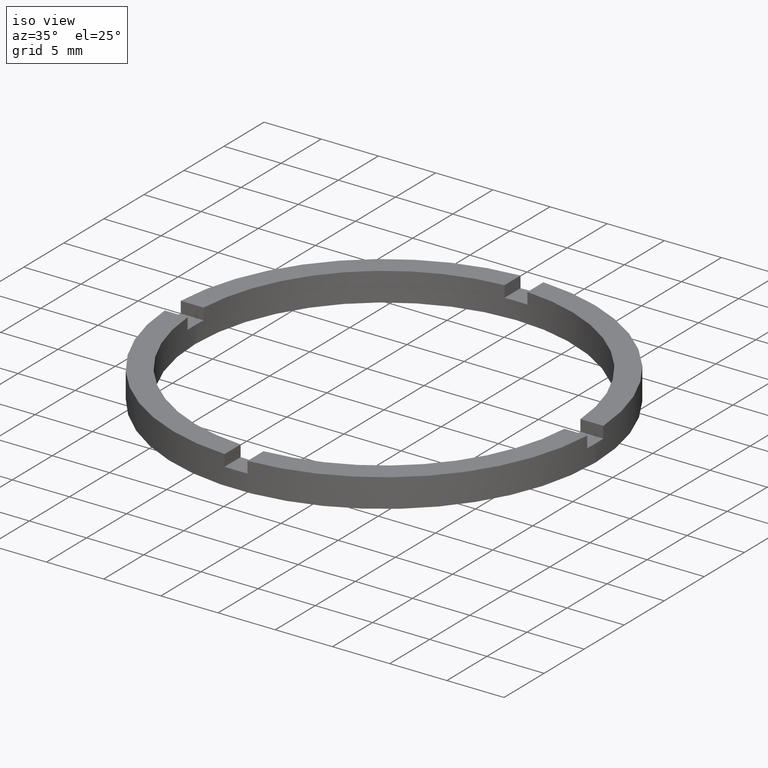
[diagram: clean part render]
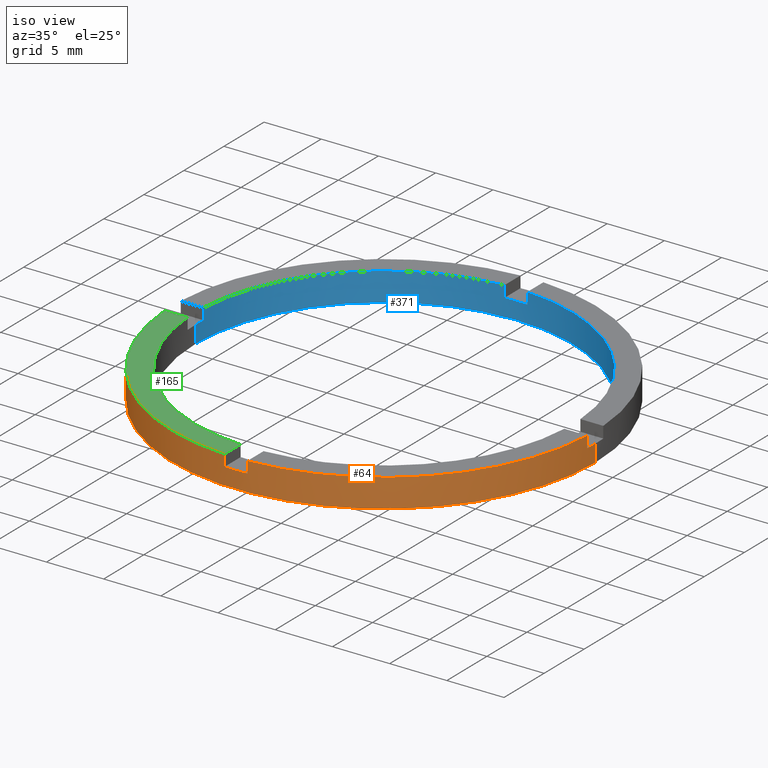
[diagram: same view with three faces highlighted in distinct colors, each labeled with its STEP entity id]
A machine part, iso view with three faces highlighted in distinct colors.
Their STEP definitions:

[orange] entity #64 — the highlighted cylindrical surface (partial cylindrical patch) has radius 18.5 mm, axis along (-0, -0, -1).
#4 = CARTESIAN_POINT ( 'NONE',  ( 0.000000000000000000, 0.000000000000000000, 1.500000000000000000 ) ) ;
#10 = DIRECTION ( 'NONE',  ( 1.000000000000000000, 0.000000000000000000, 0.000000000000000000 ) ) ;
#12 = CARTESIAN_POINT ( 'NONE',  ( -18.47295320191116375, -1.000000000000025313, 1.500000000000000000 ) ) ;
#18 = CARTESIAN_POINT ( 'NONE',  ( 0.000000000000000000, 0.000000000000000000, 2.500000000000000000 ) ) ;
#20 = EDGE_CURVE ( 'NONE', #684, #507, #678, .T. ) ;
#22 = CARTESIAN_POINT ( 'NONE',  ( 18.47295320191115309, -1.000000000000157208, 1.500000000000000000 ) ) ;
#38 = EDGE_CURVE ( 'NONE', #684, #618, #688, .T. ) ;
#53 = CARTESIAN_POINT ( 'NONE',  ( -18.50000000000000000, 0.000000000000000000, 1.500000000000000000 ) ) ;
#54 = ORIENTED_EDGE ( 'NONE', *, *, #296, .F. ) ;
#58 = ORIENTED_EDGE ( 'NONE', *, *, #427, .F. ) ;
#64 = ADVANCED_FACE ( 'NONE', ( #169 ), #456, .T. ) ;
#65 = VERTEX_POINT ( 'NONE', #12 ) ;
#79 = DIRECTION ( 'NONE',  ( 1.000000000000000000, 0.000000000000000000, 0.000000000000000000 ) ) ;
#105 = VERTEX_POINT ( 'NONE', #247 ) ;
#107 = EDGE_CURVE ( 'NONE', #350, #604, #204, .T. ) ;
#112 = LINE ( 'NONE', #501, #690 ) ;
#113 = ORIENTED_EDGE ( 'NONE', *, *, #38, .T. ) ;
#120 = LINE ( 'NONE', #135, #671 ) ;
#121 = CARTESIAN_POINT ( 'NONE',  ( 0.000000000000000000, 0.000000000000000000, 1.500000000000000000 ) ) ;
#135 = CARTESIAN_POINT ( 'NONE',  ( 18.50000000000000000, 2.265596578422603396E-15, 2.500000000000000000 ) ) ;
#142 = CIRCLE ( 'NONE', #431, 18.50000000000000000 ) ;
#143 = ORIENTED_EDGE ( 'NONE', *, *, #107, .T. ) ;
#144 = VECTOR ( 'NONE', #573, 1000.000000000000000 ) ;
#147 = CIRCLE ( 'NONE', #151, 18.50000000000000000 ) ;
#151 = AXIS2_PLACEMENT_3D ( 'NONE', #245, #330, #691 ) ;
#155 = CARTESIAN_POINT ( 'NONE',  ( -18.47295320191116375, -1.000000000000025313, 2.500000000000000000 ) ) ;
#167 = VERTEX_POINT ( 'NONE', #285 ) ;
#169 = FACE_OUTER_BOUND ( 'NONE', #340, .T. ) ;
#172 = ORIENTED_EDGE ( 'NONE', *, *, #455, .T. ) ;
#199 = AXIS2_PLACEMENT_3D ( 'NONE', #243, #325, #430 ) ;
#204 = CIRCLE ( 'NONE', #513, 18.50000000000000000 ) ;
#232 = AXIS2_PLACEMENT_3D ( 'NONE', #4, #561, #737 ) ;
#243 = CARTESIAN_POINT ( 'NONE',  ( 0.000000000000000000, 0.000000000000000000, 2.500000000000000000 ) ) ;
#245 = CARTESIAN_POINT ( 'NONE',  ( 0.000000000000000000, 0.000000000000000000, 1.500000000000000000 ) ) ;
#247 = CARTESIAN_POINT ( 'NONE',  ( 0.9999999999998391287, -18.47295320191117085, 2.500000000000000000 ) ) ;
#256 = DIRECTION ( 'NONE',  ( -0.000000000000000000, -0.000000000000000000, -1.000000000000000000 ) ) ;
#258 = EDGE_CURVE ( 'NONE', #436, #167, #652, .T. ) ;
#282 = CARTESIAN_POINT ( 'NONE',  ( -1.000000000000160982, -18.47295320191115309, 2.500000000000000000 ) ) ;
#285 = CARTESIAN_POINT ( 'NONE',  ( 18.50000000000000000, 2.265596578422603396E-15, 1.500000000000000000 ) ) ;
#290 = CARTESIAN_POINT ( 'NONE',  ( -1.000000000000160982, -18.47295320191115309, 2.500000000000000000 ) ) ;
#291 = AXIS2_PLACEMENT_3D ( 'NONE', #121, #360, #10 ) ;
#293 = CARTESIAN_POINT ( 'NONE',  ( 0.9999999999998391287, -18.47295320191117085, 2.500000000000000000 ) ) ;
#296 = EDGE_CURVE ( 'NONE', #105, #709, #358, .T. ) ;
#297 = CARTESIAN_POINT ( 'NONE',  ( 18.47295320191115309, -1.000000000000157208, 2.500000000000000000 ) ) ;
#299 = EDGE_CURVE ( 'NONE', #311, #350, #403, .T. ) ;
#311 = VERTEX_POINT ( 'NONE', #53 ) ;
#313 = ORIENTED_EDGE ( 'NONE', *, *, #425, .F. ) ;
#314 = ORIENTED_EDGE ( 'NONE', *, *, #445, .T. ) ;
#321 = DIRECTION ( 'NONE',  ( -0.000000000000000000, -0.000000000000000000, -1.000000000000000000 ) ) ;
#325 = DIRECTION ( 'NONE',  ( -0.000000000000000000, -0.000000000000000000, -1.000000000000000000 ) ) ;
#330 = DIRECTION ( 'NONE',  ( 0.000000000000000000, 0.000000000000000000, 1.000000000000000000 ) ) ;
#340 = EDGE_LOOP ( 'NONE', ( #313, #584, #461, #54, #172, #579, #113, #676, #314, #58, #580, #143 ) ) ;
#348 = VERTEX_POINT ( 'NONE', #155 ) ;
#350 = VERTEX_POINT ( 'NONE', #520 ) ;
#353 = DIRECTION ( 'NONE',  ( 0.000000000000000000, 0.000000000000000000, 1.000000000000000000 ) ) ;
#355 = EDGE_CURVE ( 'NONE', #436, #709, #369, .T. ) ;
#358 = CIRCLE ( 'NONE', #548, 18.50000000000000000 ) ;
#360 = DIRECTION ( 'NONE',  ( 0.000000000000000000, 0.000000000000000000, 1.000000000000000000 ) ) ;
#369 = LINE ( 'NONE', #297, #651 ) ;
#376 = CARTESIAN_POINT ( 'NONE',  ( 0.9999999999998391287, -18.47295320191117085, 1.500000000000000000 ) ) ;
#384 = DIRECTION ( 'NONE',  ( 0.000000000000000000, 0.000000000000000000, 1.000000000000000000 ) ) ;
#393 = VECTOR ( 'NONE', #465, 1000.000000000000000 ) ;
#403 = LINE ( 'NONE', #534, #144 ) ;
#425 = EDGE_CURVE ( 'NONE', #167, #604, #120, .T. ) ;
#427 = EDGE_CURVE ( 'NONE', #311, #65, #147, .T. ) ;
#428 = VECTOR ( 'NONE', #504, 1000.000000000000000 ) ;
#430 = DIRECTION ( 'NONE',  ( -1.000000000000000000, 0.000000000000000000, 0.000000000000000000 ) ) ;
#431 = AXIS2_PLACEMENT_3D ( 'NONE', #467, #516, #607 ) ;
#436 = VERTEX_POINT ( 'NONE', #22 ) ;
#442 = CARTESIAN_POINT ( 'NONE',  ( 18.50000000000000000, 2.265596578422603396E-15, 0.000000000000000000 ) ) ;
#445 = EDGE_CURVE ( 'NONE', #348, #65, #112, .T. ) ;
#450 = CARTESIAN_POINT ( 'NONE',  ( -1.000000000000160982, -18.47295320191115309, 1.500000000000000000 ) ) ;
#455 = EDGE_CURVE ( 'NONE', #105, #507, #654, .T. ) ;
#456 = CYLINDRICAL_SURFACE ( 'NONE', #199, 18.50000000000000000 ) ;
#461 = ORIENTED_EDGE ( 'NONE', *, *, #355, .T. ) ;
#465 = DIRECTION ( 'NONE',  ( -0.000000000000000000, -0.000000000000000000, -1.000000000000000000 ) ) ;
#467 = CARTESIAN_POINT ( 'NONE',  ( 0.000000000000000000, 0.000000000000000000, 2.500000000000000000 ) ) ;
#501 = CARTESIAN_POINT ( 'NONE',  ( -18.47295320191116375, -1.000000000000025313, 2.500000000000000000 ) ) ;
#504 = DIRECTION ( 'NONE',  ( 0.000000000000000000, 0.000000000000000000, 1.000000000000000000 ) ) ;
#507 = VERTEX_POINT ( 'NONE', #376 ) ;
#513 = AXIS2_PLACEMENT_3D ( 'NONE', #567, #637, #79 ) ;
#516 = DIRECTION ( 'NONE',  ( 0.000000000000000000, 0.000000000000000000, 1.000000000000000000 ) ) ;
#520 = CARTESIAN_POINT ( 'NONE',  ( -18.50000000000000000, 0.000000000000000000, 0.000000000000000000 ) ) ;
#534 = CARTESIAN_POINT ( 'NONE',  ( -18.50000000000000000, 0.000000000000000000, 2.500000000000000000 ) ) ;
#548 = AXIS2_PLACEMENT_3D ( 'NONE', #18, #353, #596 ) ;
#561 = DIRECTION ( 'NONE',  ( -0.000000000000000000, 0.000000000000000000, 1.000000000000000000 ) ) ;
#563 = EDGE_CURVE ( 'NONE', #348, #618, #142, .T. ) ;
#567 = CARTESIAN_POINT ( 'NONE',  ( 0.000000000000000000, 0.000000000000000000, 0.000000000000000000 ) ) ;
#573 = DIRECTION ( 'NONE',  ( -0.000000000000000000, -0.000000000000000000, -1.000000000000000000 ) ) ;
#579 = ORIENTED_EDGE ( 'NONE', *, *, #20, .F. ) ;
#580 = ORIENTED_EDGE ( 'NONE', *, *, #299, .T. ) ;
#584 = ORIENTED_EDGE ( 'NONE', *, *, #258, .F. ) ;
#596 = DIRECTION ( 'NONE',  ( 1.000000000000000000, 0.000000000000000000, 0.000000000000000000 ) ) ;
#604 = VERTEX_POINT ( 'NONE', #442 ) ;
#607 = DIRECTION ( 'NONE',  ( 1.000000000000000000, 0.000000000000000000, 0.000000000000000000 ) ) ;
#618 = VERTEX_POINT ( 'NONE', #290 ) ;
#637 = DIRECTION ( 'NONE',  ( 0.000000000000000000, 0.000000000000000000, 1.000000000000000000 ) ) ;
#651 = VECTOR ( 'NONE', #384, 1000.000000000000000 ) ;
#652 = CIRCLE ( 'NONE', #291, 18.50000000000000000 ) ;
#654 = LINE ( 'NONE', #293, #393 ) ;
#671 = VECTOR ( 'NONE', #321, 1000.000000000000000 ) ;
#676 = ORIENTED_EDGE ( 'NONE', *, *, #563, .F. ) ;
#678 = CIRCLE ( 'NONE', #232, 18.50000000000000000 ) ;
#684 = VERTEX_POINT ( 'NONE', #450 ) ;
#688 = LINE ( 'NONE', #282, #428 ) ;
#690 = VECTOR ( 'NONE', #256, 1000.000000000000000 ) ;
#691 = DIRECTION ( 'NONE',  ( 1.000000000000000000, 0.000000000000000000, 0.000000000000000000 ) ) ;
#709 = VERTEX_POINT ( 'NONE', #742 ) ;
#737 = DIRECTION ( 'NONE',  ( 1.000000000000000000, 0.000000000000000000, 0.000000000000000000 ) ) ;
#742 = CARTESIAN_POINT ( 'NONE',  ( 18.47295320191115309, -1.000000000000157208, 2.500000000000000000 ) ) ;

[blue] entity #371 — the highlighted cylindrical surface (partial cylindrical patch) has radius 16.5 mm, axis along (-0, -0, -1).
#1 = DIRECTION ( 'NONE',  ( 0.000000000000000000, 0.000000000000000000, 1.000000000000000000 ) ) ;
#7 = DIRECTION ( 'NONE',  ( -0.000000000000000000, -0.000000000000000000, -1.000000000000000000 ) ) ;
#15 = DIRECTION ( 'NONE',  ( 1.000000000000000000, 0.000000000000000000, 0.000000000000000000 ) ) ;
#17 = EDGE_CURVE ( 'NONE', #673, #136, #413, .T. ) ;
#30 = DIRECTION ( 'NONE',  ( -0.000000000000000000, -0.000000000000000000, -1.000000000000000000 ) ) ;
#43 = DIRECTION ( 'NONE',  ( 0.000000000000000000, 0.000000000000000000, 1.000000000000000000 ) ) ;
#48 = DIRECTION ( 'NONE',  ( 0.000000000000000000, -0.000000000000000000, 1.000000000000000000 ) ) ;
#49 = DIRECTION ( 'NONE',  ( 0.000000000000000000, 0.000000000000000000, 1.000000000000000000 ) ) ;
#66 = EDGE_CURVE ( 'NONE', #616, #595, #723, .T. ) ;
#67 = ORIENTED_EDGE ( 'NONE', *, *, #543, .F. ) ;
#78 = AXIS2_PLACEMENT_3D ( 'NONE', #277, #398, #490 ) ;
#80 = ORIENTED_EDGE ( 'NONE', *, *, #254, .T. ) ;
#87 = ORIENTED_EDGE ( 'NONE', *, *, #244, .T. ) ;
#91 = VERTEX_POINT ( 'NONE', #503 ) ;
#94 = ORIENTED_EDGE ( 'NONE', *, *, #97, .F. ) ;
#97 = EDGE_CURVE ( 'NONE', #100, #136, #732, .T. ) ;
#100 = VERTEX_POINT ( 'NONE', #236 ) ;
#108 = CARTESIAN_POINT ( 'NONE',  ( 0.000000000000000000, 0.000000000000000000, 1.500000000000000000 ) ) ;
#117 = VERTEX_POINT ( 'NONE', #406 ) ;
#126 = VECTOR ( 'NONE', #30, 1000.000000000000000 ) ;
#127 = LINE ( 'NONE', #550, #126 ) ;
#129 = LINE ( 'NONE', #612, #687 ) ;
#130 = VECTOR ( 'NONE', #257, 1000.000000000000000 ) ;
#132 = CIRCLE ( 'NONE', #533, 16.50000000000000000 ) ;
#136 = VERTEX_POINT ( 'NONE', #306 ) ;
#174 = EDGE_CURVE ( 'NONE', #117, #609, #721, .T. ) ;
#190 = ORIENTED_EDGE ( 'NONE', *, *, #331, .T. ) ;
#197 = ORIENTED_EDGE ( 'NONE', *, *, #728, .F. ) ;
#201 = CARTESIAN_POINT ( 'NONE',  ( 0.000000000000000000, 0.000000000000000000, 2.500000000000000000 ) ) ;
#214 = CARTESIAN_POINT ( 'NONE',  ( 0.9999999999999733546, 16.46966909200060414, 2.500000000000000000 ) ) ;
#222 = CARTESIAN_POINT ( 'NONE',  ( -1.000000000000026645, 16.46966909200060059, 2.500000000000000000 ) ) ;
#236 = CARTESIAN_POINT ( 'NONE',  ( 16.46966909200061480, 0.9999999999998427924, 2.500000000000000000 ) ) ;
#244 = EDGE_CURVE ( 'NONE', #334, #91, #627, .T. ) ;
#252 = CARTESIAN_POINT ( 'NONE',  ( -1.000000000000026645, 16.46966909200060059, 2.500000000000000000 ) ) ;
#254 = EDGE_CURVE ( 'NONE', #117, #320, #396, .T. ) ;
#257 = DIRECTION ( 'NONE',  ( -0.000000000000000000, -0.000000000000000000, -1.000000000000000000 ) ) ;
#260 = CARTESIAN_POINT ( 'NONE',  ( 16.50000000000000000, 2.020667218593133100E-15, 2.500000000000000000 ) ) ;
#261 = CARTESIAN_POINT ( 'NONE',  ( 16.50000000000000000, 2.020667218593133100E-15, 0.000000000000000000 ) ) ;
#267 = EDGE_CURVE ( 'NONE', #100, #609, #132, .T. ) ;
#268 = DIRECTION ( 'NONE',  ( -0.000000000000000000, -0.000000000000000000, -1.000000000000000000 ) ) ;
#277 = CARTESIAN_POINT ( 'NONE',  ( 0.000000000000000000, 0.000000000000000000, 1.500000000000000000 ) ) ;
#302 = CARTESIAN_POINT ( 'NONE',  ( -16.46966909200060414, 0.9999999999999751310, 1.500000000000000000 ) ) ;
#306 = CARTESIAN_POINT ( 'NONE',  ( 16.46966909200061480, 0.9999999999998427924, 1.500000000000000000 ) ) ;
#310 = ORIENTED_EDGE ( 'NONE', *, *, #17, .T. ) ;
#316 = VERTEX_POINT ( 'NONE', #261 ) ;
#320 = VERTEX_POINT ( 'NONE', #615 ) ;
#323 = ORIENTED_EDGE ( 'NONE', *, *, #562, .F. ) ;
#329 = ORIENTED_EDGE ( 'NONE', *, *, #66, .T. ) ;
#331 = EDGE_CURVE ( 'NONE', #91, #421, #127, .T. ) ;
#334 = VERTEX_POINT ( 'NONE', #302 ) ;
#345 = ORIENTED_EDGE ( 'NONE', *, *, #540, .F. ) ;
#354 = EDGE_LOOP ( 'NONE', ( #345, #310, #94, #583, #711, #80, #323, #329, #67, #87, #190, #197 ) ) ;
#370 = DIRECTION ( 'NONE',  ( -1.000000000000000000, 0.000000000000000000, 0.000000000000000000 ) ) ;
#371 = ADVANCED_FACE ( 'NONE', ( #392 ), #669, .F. ) ;
#382 = VECTOR ( 'NONE', #783, 1000.000000000000000 ) ;
#392 = FACE_OUTER_BOUND ( 'NONE', #354, .T. ) ;
#396 = CIRCLE ( 'NONE', #747, 16.50000000000000000 ) ;
#398 = DIRECTION ( 'NONE',  ( 0.000000000000000000, 0.000000000000000000, 1.000000000000000000 ) ) ;
#406 = CARTESIAN_POINT ( 'NONE',  ( 0.9999999999999733546, 16.46966909200060414, 1.500000000000000000 ) ) ;
#413 = CIRCLE ( 'NONE', #78, 16.50000000000000000 ) ;
#417 = CARTESIAN_POINT ( 'NONE',  ( 0.9999999999999733546, 16.46966909200060414, 2.500000000000000000 ) ) ;
#421 = VERTEX_POINT ( 'NONE', #512 ) ;
#438 = DIRECTION ( 'NONE',  ( 0.000000000000000000, 0.000000000000000000, 1.000000000000000000 ) ) ;
#449 = CARTESIAN_POINT ( 'NONE',  ( 0.000000000000000000, 0.000000000000000000, 1.500000000000000000 ) ) ;
#454 = AXIS2_PLACEMENT_3D ( 'NONE', #449, #438, #506 ) ;
#463 = VECTOR ( 'NONE', #1, 1000.000000000000000 ) ;
#481 = CARTESIAN_POINT ( 'NONE',  ( 0.000000000000000000, 0.000000000000000000, 2.500000000000000000 ) ) ;
#490 = DIRECTION ( 'NONE',  ( 1.000000000000000000, 0.000000000000000000, 0.000000000000000000 ) ) ;
#495 = CARTESIAN_POINT ( 'NONE',  ( 0.000000000000000000, 0.000000000000000000, 0.000000000000000000 ) ) ;
#503 = CARTESIAN_POINT ( 'NONE',  ( -16.50000000000000000, 0.000000000000000000, 1.500000000000000000 ) ) ;
#506 = DIRECTION ( 'NONE',  ( 1.000000000000000000, 0.000000000000000000, 0.000000000000000000 ) ) ;
#511 = CARTESIAN_POINT ( 'NONE',  ( 0.000000000000000000, 0.000000000000000000, 2.500000000000000000 ) ) ;
#512 = CARTESIAN_POINT ( 'NONE',  ( -16.50000000000000000, 0.000000000000000000, 0.000000000000000000 ) ) ;
#525 = DIRECTION ( 'NONE',  ( 1.000000000000000000, 0.000000000000000000, 0.000000000000000000 ) ) ;
#527 = DIRECTION ( 'NONE',  ( 0.000000000000000000, 0.000000000000000000, 1.000000000000000000 ) ) ;
#533 = AXIS2_PLACEMENT_3D ( 'NONE', #511, #49, #590 ) ;
#540 = EDGE_CURVE ( 'NONE', #673, #316, #680, .T. ) ;
#543 = EDGE_CURVE ( 'NONE', #334, #595, #129, .T. ) ;
#550 = CARTESIAN_POINT ( 'NONE',  ( -16.50000000000000000, 0.000000000000000000, 2.500000000000000000 ) ) ;
#562 = EDGE_CURVE ( 'NONE', #616, #320, #664, .T. ) ;
#565 = DIRECTION ( 'NONE',  ( 1.000000000000000000, 0.000000000000000000, 0.000000000000000000 ) ) ;
#574 = CARTESIAN_POINT ( 'NONE',  ( 16.46966909200061480, 0.9999999999998427924, 2.500000000000000000 ) ) ;
#583 = ORIENTED_EDGE ( 'NONE', *, *, #267, .T. ) ;
#587 = AXIS2_PLACEMENT_3D ( 'NONE', #481, #268, #370 ) ;
#590 = DIRECTION ( 'NONE',  ( 1.000000000000000000, 0.000000000000000000, 0.000000000000000000 ) ) ;
#595 = VERTEX_POINT ( 'NONE', #762 ) ;
#609 = VERTEX_POINT ( 'NONE', #214 ) ;
#612 = CARTESIAN_POINT ( 'NONE',  ( -16.46966909200060414, 0.9999999999999751310, 2.500000000000000000 ) ) ;
#615 = CARTESIAN_POINT ( 'NONE',  ( -1.000000000000026645, 16.46966909200060059, 1.500000000000000000 ) ) ;
#616 = VERTEX_POINT ( 'NONE', #252 ) ;
#627 = CIRCLE ( 'NONE', #454, 16.50000000000000000 ) ;
#664 = LINE ( 'NONE', #222, #130 ) ;
#669 = CYLINDRICAL_SURFACE ( 'NONE', #587, 16.50000000000000000 ) ;
#673 = VERTEX_POINT ( 'NONE', #757 ) ;
#680 = LINE ( 'NONE', #260, #382 ) ;
#687 = VECTOR ( 'NONE', #738, 1000.000000000000000 ) ;
#692 = AXIS2_PLACEMENT_3D ( 'NONE', #201, #43, #525 ) ;
#705 = CIRCLE ( 'NONE', #717, 16.50000000000000000 ) ;
#711 = ORIENTED_EDGE ( 'NONE', *, *, #174, .F. ) ;
#717 = AXIS2_PLACEMENT_3D ( 'NONE', #495, #527, #565 ) ;
#721 = LINE ( 'NONE', #417, #463 ) ;
#723 = CIRCLE ( 'NONE', #692, 16.50000000000000000 ) ;
#728 = EDGE_CURVE ( 'NONE', #316, #421, #705, .T. ) ;
#732 = LINE ( 'NONE', #574, #739 ) ;
#738 = DIRECTION ( 'NONE',  ( 0.000000000000000000, 0.000000000000000000, 1.000000000000000000 ) ) ;
#739 = VECTOR ( 'NONE', #7, 1000.000000000000000 ) ;
#747 = AXIS2_PLACEMENT_3D ( 'NONE', #108, #48, #15 ) ;
#757 = CARTESIAN_POINT ( 'NONE',  ( 16.50000000000000000, 2.020667218593133100E-15, 1.500000000000000000 ) ) ;
#762 = CARTESIAN_POINT ( 'NONE',  ( -16.46966909200060414, 0.9999999999999751310, 2.500000000000000000 ) ) ;
#783 = DIRECTION ( 'NONE',  ( -0.000000000000000000, -0.000000000000000000, -1.000000000000000000 ) ) ;

[green] entity #165 — the highlighted planar face has unit normal (0, 0, 1).
#8 = DIRECTION ( 'NONE',  ( 1.000000000000000000, 1.951563910473908228E-16, -0.000000000000000000 ) ) ;
#36 = EDGE_CURVE ( 'NONE', #348, #594, #159, .T. ) ;
#42 = PLANE ( 'NONE',  #327 ) ;
#83 = DIRECTION ( 'NONE',  ( 1.301042606982605321E-16, -1.000000000000000000, 0.000000000000000000 ) ) ;
#142 = CIRCLE ( 'NONE', #431, 18.50000000000000000 ) ;
#155 = CARTESIAN_POINT ( 'NONE',  ( -18.47295320191116375, -1.000000000000025313, 2.500000000000000000 ) ) ;
#158 = CIRCLE ( 'NONE', #191, 16.50000000000000000 ) ;
#159 = LINE ( 'NONE', #228, #175 ) ;
#165 = ADVANCED_FACE ( 'NONE', ( #200 ), #42, .T. ) ;
#175 = VECTOR ( 'NONE', #8, 1000.000000000000000 ) ;
#185 = ORIENTED_EDGE ( 'NONE', *, *, #563, .T. ) ;
#191 = AXIS2_PLACEMENT_3D ( 'NONE', #337, #542, #328 ) ;
#200 = FACE_OUTER_BOUND ( 'NONE', #625, .T. ) ;
#228 = CARTESIAN_POINT ( 'NONE',  ( -8.500000000000184741, -1.000000000000023537, 2.500000000000000000 ) ) ;
#271 = CARTESIAN_POINT ( 'NONE',  ( 0.000000000000000000, 0.000000000000000000, 2.500000000000000000 ) ) ;
#290 = CARTESIAN_POINT ( 'NONE',  ( -1.000000000000160982, -18.47295320191115309, 2.500000000000000000 ) ) ;
#327 = AXIS2_PLACEMENT_3D ( 'NONE', #271, #559, #659 ) ;
#328 = DIRECTION ( 'NONE',  ( 1.000000000000000000, 0.000000000000000000, 0.000000000000000000 ) ) ;
#332 = ORIENTED_EDGE ( 'NONE', *, *, #523, .F. ) ;
#337 = CARTESIAN_POINT ( 'NONE',  ( 0.000000000000000000, 0.000000000000000000, 2.500000000000000000 ) ) ;
#348 = VERTEX_POINT ( 'NONE', #155 ) ;
#390 = CARTESIAN_POINT ( 'NONE',  ( -1.000000000000162315, -8.500000000000179412, 2.500000000000000000 ) ) ;
#401 = ORIENTED_EDGE ( 'NONE', *, *, #589, .F. ) ;
#405 = LINE ( 'NONE', #390, #645 ) ;
#431 = AXIS2_PLACEMENT_3D ( 'NONE', #467, #516, #607 ) ;
#467 = CARTESIAN_POINT ( 'NONE',  ( 0.000000000000000000, 0.000000000000000000, 2.500000000000000000 ) ) ;
#516 = DIRECTION ( 'NONE',  ( 0.000000000000000000, 0.000000000000000000, 1.000000000000000000 ) ) ;
#523 = EDGE_CURVE ( 'NONE', #666, #618, #405, .T. ) ;
#542 = DIRECTION ( 'NONE',  ( 0.000000000000000000, 0.000000000000000000, 1.000000000000000000 ) ) ;
#559 = DIRECTION ( 'NONE',  ( 0.000000000000000000, 0.000000000000000000, 1.000000000000000000 ) ) ;
#563 = EDGE_CURVE ( 'NONE', #348, #618, #142, .T. ) ;
#576 = CARTESIAN_POINT ( 'NONE',  ( -16.46966909200060414, -1.000000000000024869, 2.500000000000000000 ) ) ;
#589 = EDGE_CURVE ( 'NONE', #594, #666, #158, .T. ) ;
#594 = VERTEX_POINT ( 'NONE', #576 ) ;
#607 = DIRECTION ( 'NONE',  ( 1.000000000000000000, 0.000000000000000000, 0.000000000000000000 ) ) ;
#618 = VERTEX_POINT ( 'NONE', #290 ) ;
#625 = EDGE_LOOP ( 'NONE', ( #332, #401, #681, #185 ) ) ;
#645 = VECTOR ( 'NONE', #83, 1000.000000000000000 ) ;
#659 = DIRECTION ( 'NONE',  ( 1.000000000000000000, 0.000000000000000000, -0.000000000000000000 ) ) ;
#666 = VERTEX_POINT ( 'NONE', #672 ) ;
#672 = CARTESIAN_POINT ( 'NONE',  ( -1.000000000000161204, -16.46966909200059348, 2.500000000000000000 ) ) ;
#681 = ORIENTED_EDGE ( 'NONE', *, *, #36, .F. ) ;